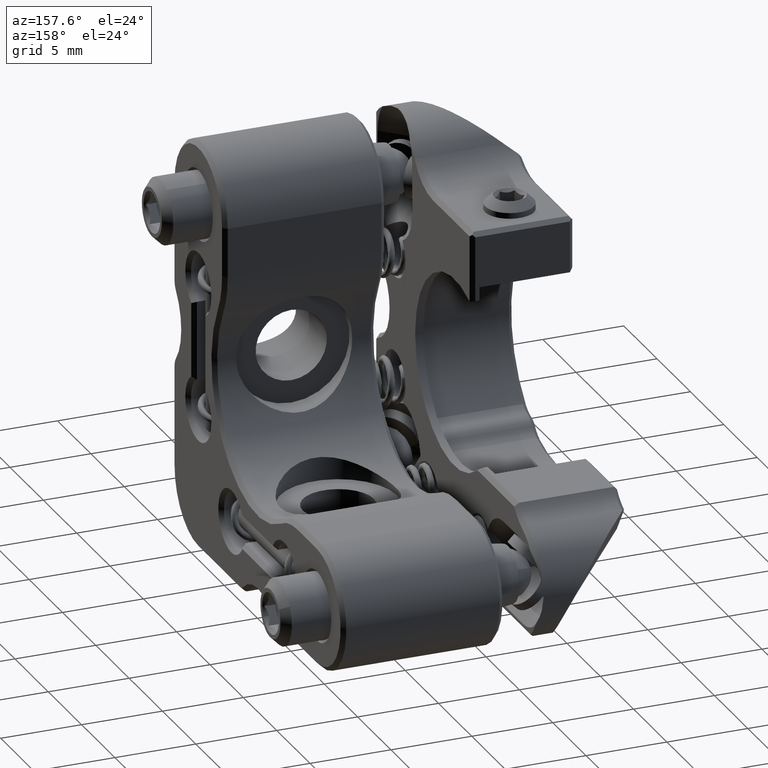
[diagram: clean part render]
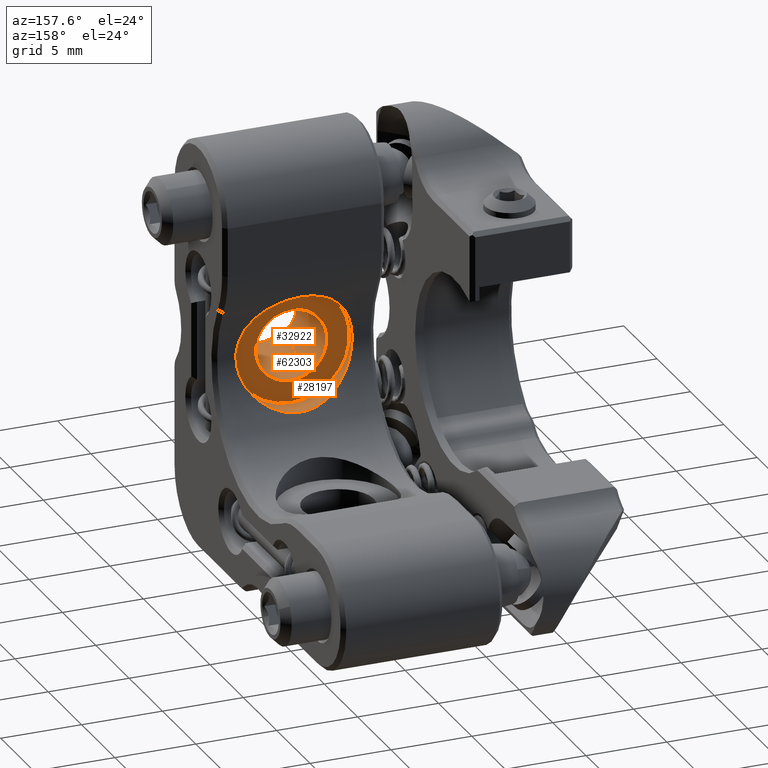
[diagram: same view with one multi-face feature highlighted, each face labeled with its STEP entity id]
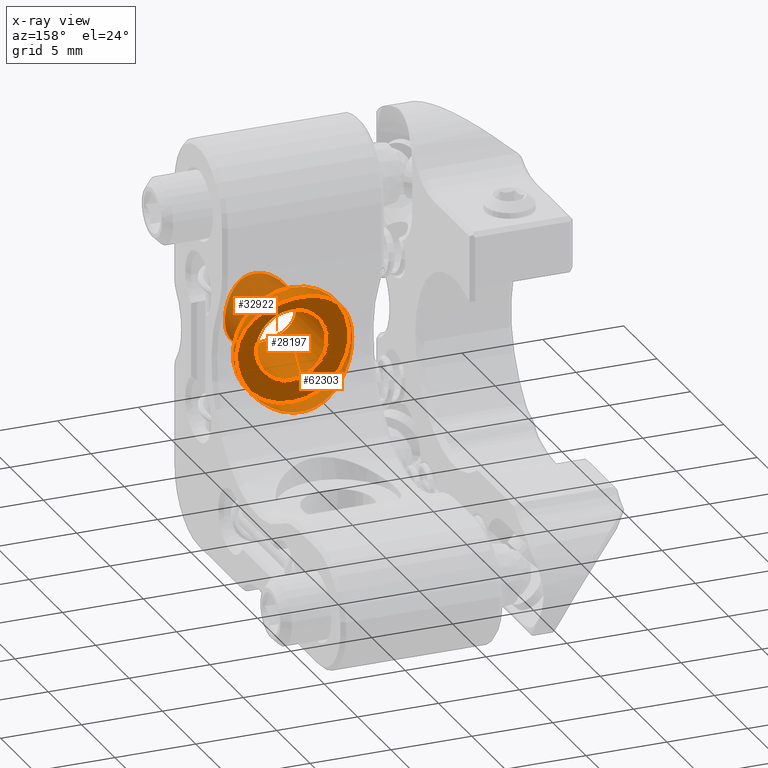
[diagram: x-ray of the same camera — body ghosted, the whole feature saturated]
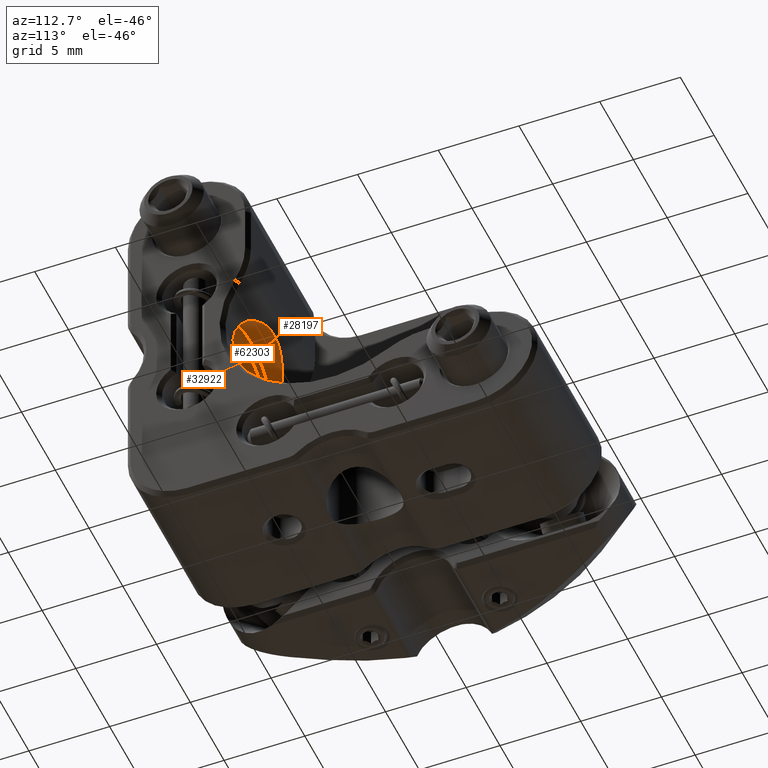
[diagram: same view with one multi-face feature highlighted, each face labeled with its STEP entity id]
A machine part, auxiliary view. The highlighted faces form ONE feature: a stepped (counterbored) hole: 2 coaxial cylindrical walls of radii 2.2 -> 3.6 mm joined by 1 annular planar shoulder face(s). The faces share edges in the B-rep.
The next image is the same camera in x-ray: the body ghosted and the whole hole feature saturated, so the bore chain is visible through the body.
A second angle (auxiliary view) of the same feature is appended — it is thin or edge-on in the first view.
Their STEP definitions:
[1] entity #28197 (Cylinder):
#289 = DIRECTION ( 'NONE',  ( 0.000000000000000000, -2.409338161078898194E-16, 1.000000000000000000 ) ) ;
#410 = CARTESIAN_POINT ( 'NONE',  ( 2.999227417622090996, -6.365207588899481017, -2.001839198852378487 ) ) ;
#735 = CARTESIAN_POINT ( 'NONE',  ( 1.990366503423735445, -5.954974567753317238, -3.006815794206267434 ) ) ;
#823 = B_SPLINE_CURVE_WITH_KNOTS ( 'NONE', 3,
 ( #45453, #30318, #30982, #25278, #10150, #46430, #46758, #51457, #51778, #36030, #29989, #30650, #56496, #5445, #25933, #410, #20898, #41402, #56827, #5769, #735, #60871, #35369, #45783, #40425, #62181, #50482, #16180, #50806, #55510, #66240, #5121, #55841, #35696, #24950, #19913, #9819, #56166, #42053, #57144, #47086, #63496, #27572, #31962, #21544, #2049, #57804, #22193, #11786, #11459, #62507, #48068, #42705, #63162, #37672, #17499, #32614, #11123 ),
 .UNSPECIFIED., .F., .F.,
 ( 4, 2, 2, 2, 2, 2, 2, 2, 2, 2, 2, 2, 2, 2, 2, 2, 2, 2, 2, 2, 2, 2, 2, 2, 2, 2, 2, 2, 4 ),
 ( -0.01017427484824065705, -0.008903594234275377661, -0.007632913620310098277, -0.006362233006344818025, -0.005726892699362178332, -0.005091552392379538640, -0.004456212085396898948, -0.003820871778414258388, -0.003185531471431618696, -0.002550191164448979003, -0.001914850857466340178, -0.001279510550483699619, -0.0006441702435010590588, -8.829936518420233860E-06, 0.0006265103704642185911, 0.001261850677446859151, 0.001897190984429499711, 0.002532531291412140270, 0.003167871598394779095, 0.003803211905377419655, 0.004438552212360060215, 0.005073892519342699040, 0.005709232826325334395, 0.006344573133307973220, 0.007615253747273250870, 0.008250594054255889695, 0.008885934361238525050, 0.009521274668221163875, 0.01015661497520379923 ),
 .UNSPECIFIED. ) ;
#1603 = CARTESIAN_POINT ( 'NONE',  ( 0.000000000000000000, -7.079999999999999183, -1.572075802869221480E-15 ) ) ;
#1690 = B_SPLINE_CURVE_WITH_KNOTS ( 'NONE', 3,
 ( #38898, #13340, #33849, #35841, #62323, #15995, #41541, #10617, #30459, #46899 ),
 .UNSPECIFIED., .F., .F.,
 ( 4, 2, 2, 2, 4 ),
 ( -0.001319188184262977707, -0.0006596196351350410922, -5.108600710447726290E-08, 0.0006595174631208319208, 0.001319086012248768319 ),
 .UNSPECIFIED. ) ;
#2049 = CARTESIAN_POINT ( 'NONE',  ( -3.602001608509256769, -6.671080285931093812, 0.1759047866018546291 ) ) ;
#5121 = CARTESIAN_POINT ( 'NONE',  ( -1.431482785438481953, -5.791468659309575884, -3.309794324164818669 ) ) ;
#5201 = EDGE_CURVE ( 'NONE', #20313, #20313, #6822, .T. ) ;
#5445 = CARTESIAN_POINT ( 'NONE',  ( 3.299641821881809545, -6.512496146404029851, -1.454685377719002304 ) ) ;
#5769 = CARTESIAN_POINT ( 'NONE',  ( 2.156933656981588676, -6.013356321162400597, -2.889478491870121957 ) ) ;
#6822 = CIRCLE ( 'NONE', #60435, 3.600000000000000533 ) ;
#9819 = CARTESIAN_POINT ( 'NONE',  ( -2.604509012406206470, -6.188542217661296085, -2.493699652372160180 ) ) ;
#10020 = DIRECTION ( 'NONE',  ( -0.000000000000000000, 1.000000000000000000, 2.220446049250313081E-16 ) ) ;
#10150 = CARTESIAN_POINT ( 'NONE',  ( 2.915657196636493254, -6.324324917119667155, 2.152422688581716148 ) ) ;
#10617 = CARTESIAN_POINT ( 'NONE',  ( -0.8726701642541234705, -5.683191274859164643, 3.499487090323886385 ) ) ;
#11123 = CARTESIAN_POINT ( 'NONE',  ( -1.289541171353878468, -5.761233933161954646, 3.361113441611761843 ) ) ;
#11459 = CARTESIAN_POINT ( 'NONE',  ( -3.026471455616823292, -6.378122954127268152, 1.960406414998290936 ) ) ;
#11786 = CARTESIAN_POINT ( 'NONE',  ( -3.333201607127716848, -6.527420986803713632, 1.421498568680486407 ) ) ;
#12350 = EDGE_LOOP ( 'NONE', ( #37577 ) ) ;
#13340 = CARTESIAN_POINT ( 'NONE',  ( 1.085704604197472056, -5.715609046440620844, 3.439318372847163463 ) ) ;
#15995 = CARTESIAN_POINT ( 'NONE',  ( -0.2229319806949627836, -5.630452435326498417, 3.600003208906441543 ) ) ;
#16180 = CARTESIAN_POINT ( 'NONE',  ( -0.2062466073216841222, -5.614723298138883933, -3.600525335491211010 ) ) ;
#17499 = CARTESIAN_POINT ( 'NONE',  ( -1.672337023569226755, -5.856389156944260321, 3.194672768705502097 ) ) ;
#19913 = CARTESIAN_POINT ( 'NONE',  ( -2.459647513272282815, -6.128431422745098445, -2.636633829097012161 ) ) ;
#20313 = VERTEX_POINT ( 'NONE', #21296 ) ;
#20898 = CARTESIAN_POINT ( 'NONE',  ( 2.880595148318685794, -6.309719007968070947, -2.168933854323909394 ) ) ;
#21296 = CARTESIAN_POINT ( 'NONE',  ( 0.000000000000000000, -7.080000000000000071, 3.599999999999998757 ) ) ;
#21544 = CARTESIAN_POINT ( 'NONE',  ( -3.597616904322380016, -6.668713817813848976, -0.2500213818587918579 ) ) ;
#22193 = CARTESIAN_POINT ( 'NONE',  ( -3.479029930978941643, -6.605224634968987374, 1.017519044529580974 ) ) ;
#24950 = CARTESIAN_POINT ( 'NONE',  ( -2.145694345154467886, -6.009310279605375449, -2.897878468027504262 ) ) ;
#25278 = CARTESIAN_POINT ( 'NONE',  ( 2.655979252209755614, -6.204833769869270377, 2.464799130474355060 ) ) ;
#25933 = CARTESIAN_POINT ( 'NONE',  ( 3.208640834045037860, -6.466519817418693528, -1.645402467111549694 ) ) ;
#27572 = CARTESIAN_POINT ( 'NONE',  ( -3.498431243463553386, -6.615649985903123920, -0.8749418580757117869 ) ) ;
#27774 = VERTEX_POINT ( 'NONE', #28537 ) ;
#28197 = ADVANCED_FACE ( 'NONE', ( #30193, #45004 ), #55715, .F. ) ;
#28537 = CARTESIAN_POINT ( 'NONE',  ( -1.289541171353878468, -5.761233933161954646, 3.361113441611761843 ) ) ;
#29989 = CARTESIAN_POINT ( 'NONE',  ( 3.579222377425992807, -6.658728961809710967, -0.4411076963971986564 ) ) ;
#30193 = FACE_OUTER_BOUND ( 'NONE', #42609, .T. ) ;
#30318 = CARTESIAN_POINT ( 'NONE',  ( 1.682098936019234880, -5.849100422449398096, 3.210502815560449807 ) ) ;
#30459 = CARTESIAN_POINT ( 'NONE',  ( -1.085719081882338344, -5.715612286991329505, 3.439312818267995286 ) ) ;
#30650 = CARTESIAN_POINT ( 'NONE',  ( 3.502190104692616490, -6.617641127258513833, -0.8602751289447720939 ) ) ;
#30982 = CARTESIAN_POINT ( 'NONE',  ( 2.031000025768237016, -5.964117489470841527, 3.000749812477749412 ) ) ;
#31962 = CARTESIAN_POINT ( 'NONE',  ( -3.576703117086199146, -6.657372511622901001, -0.4601513147659020420 ) ) ;
#32614 = CARTESIAN_POINT ( 'NONE',  ( -1.486061290132179469, -5.805221173934332235, 3.285715574635141856 ) ) ;
#33849 = CARTESIAN_POINT ( 'NONE',  ( 0.8760056062511946129, -5.683641334226639863, 3.498651844196974281 ) ) ;
#35369 = CARTESIAN_POINT ( 'NONE',  ( 1.444738325126532663, -5.794847398166485419, -3.303876223447648641 ) ) ;
#35696 = CARTESIAN_POINT ( 'NONE',  ( -1.975228474474693297, -5.949922109042764085, -3.016759175006994198 ) ) ;
#35841 = CARTESIAN_POINT ( 'NONE',  ( 0.4454932807419123009, -5.641029851618619695, 3.579034267215142506 ) ) ;
#35908 = CARTESIAN_POINT ( 'NONE',  ( 0.000000000000000000, -5.079999999999999183, -1.127986593019158864E-15 ) ) ;
#36030 = CARTESIAN_POINT ( 'NONE',  ( 3.598995075405910349, -6.669457615858813249, -0.2279368133229083548 ) ) ;
#37577 = ORIENTED_EDGE ( 'NONE', *, *, #5201, .F. ) ;
#37672 = CARTESIAN_POINT ( 'NONE',  ( -2.026678037794401366, -5.967244481840181081, 2.982485767045787384 ) ) ;
#37896 = DIRECTION ( 'NONE',  ( -0.000000000000000000, 1.000000000000000000, 2.220446049250313081E-16 ) ) ;
#38898 = CARTESIAN_POINT ( 'NONE',  ( 1.289541171353888016, -5.761233933161956422, 3.361113441611757846 ) ) ;
#40425 = CARTESIAN_POINT ( 'NONE',  ( 0.8557443330029467221, -5.676133957738346503, -3.503201273901051849 ) ) ;
#41402 = CARTESIAN_POINT ( 'NONE',  ( 2.615495237606380030, -6.193185035903422175, -2.482194016391116254 ) ) ;
#41541 = CARTESIAN_POINT ( 'NONE',  ( -0.4420243683481044350, -5.640808336284757196, 3.579466101070007511 ) ) ;
#42053 = CARTESIAN_POINT ( 'NONE',  ( -2.992070795409341954, -6.361835251912364875, -2.012426381124174490 ) ) ;
#42609 = EDGE_LOOP ( 'NONE', ( #61809, #62962 ) ) ;
#42705 = CARTESIAN_POINT ( 'NONE',  ( -2.503858752667845522, -6.146370323695264482, 2.594671444170378205 ) ) ;
#44117 = CARTESIAN_POINT ( 'NONE',  ( 1.289541171353888016, -5.761233933161956422, 3.361113441611757846 ) ) ;
#45004 = FACE_OUTER_BOUND ( 'NONE', #12350, .T. ) ;
#45453 = CARTESIAN_POINT ( 'NONE',  ( 1.289541171353888016, -5.761233933161956422, 3.361113441611757846 ) ) ;
#45783 = CARTESIAN_POINT ( 'NONE',  ( 1.056440102266443803, -5.710433716419814232, -3.447724066435042367 ) ) ;
#46430 = CARTESIAN_POINT ( 'NONE',  ( 3.330580660644239188, -6.526009217436021359, 1.428710181094160925 ) ) ;
#46758 = CARTESIAN_POINT ( 'NONE',  ( 3.473303782396710560, -6.602188776893842537, 1.038645597843692814 ) ) ;
#46899 = CARTESIAN_POINT ( 'NONE',  ( -1.289541171353878468, -5.761233933161954646, 3.361113441611761843 ) ) ;
#47086 = CARTESIAN_POINT ( 'NONE',  ( -3.291724588799680884, -6.508479535207149169, -1.472495319900344768 ) ) ;
#47866 = AXIS2_PLACEMENT_3D ( 'NONE', #35908, #10020, #289 ) ;
#47957 = DIRECTION ( 'NONE',  ( 0.000000000000000000, -2.409338161078898194E-16, 1.000000000000000000 ) ) ;
#48068 = CARTESIAN_POINT ( 'NONE',  ( -2.646504484872872709, -6.206377833080256146, 2.449147444856166089 ) ) ;
#49444 = VERTEX_POINT ( 'NONE', #44117 ) ;
#50482 = CARTESIAN_POINT ( 'NONE',  ( 0.2241953362221954515, -5.615411258351044488, -3.599452292469232706 ) ) ;
#50806 = CARTESIAN_POINT ( 'NONE',  ( -0.4176278272620545517, -5.626795184782809933, -3.581890472062645436 ) ) ;
#51457 = CARTESIAN_POINT ( 'NONE',  ( 3.583280490465420076, -6.660918738701370856, 0.4071325181470422105 ) ) ;
#51625 = EDGE_CURVE ( 'NONE', #49444, #27774, #823, .T. ) ;
#51778 = CARTESIAN_POINT ( 'NONE',  ( 3.600929608451413966, -6.670501733900022323, 0.1950043554430154202 ) ) ;
#55510 = CARTESIAN_POINT ( 'NONE',  ( -0.8324309800280904614, -5.672684759961716061, -3.508762035169420201 ) ) ;
#55715 = CYLINDRICAL_SURFACE ( 'NONE', #47866, 3.600000000000000533 ) ;
#55841 = CARTESIAN_POINT ( 'NONE',  ( -1.618525208180857433, -5.841204450010043736, -3.222225876137118750 ) ) ;
#56166 = CARTESIAN_POINT ( 'NONE',  ( -2.870700708856220196, -6.305197074152292025, -2.181990511463919091 ) ) ;
#56496 = CARTESIAN_POINT ( 'NONE',  ( 3.445902822936566690, -6.587808146063303560, -1.062779109570177516 ) ) ;
#56827 = CARTESIAN_POINT ( 'NONE',  ( 2.468954658850602168, -6.132196062757934385, -2.627872076060763451 ) ) ;
#57144 = CARTESIAN_POINT ( 'NONE',  ( -3.201902579080704303, -6.463175709638183442, -1.658362884974929452 ) ) ;
#57804 = CARTESIAN_POINT ( 'NONE',  ( -3.584863848849040746, -6.661776010886523380, 0.3917904438247437615 ) ) ;
#60435 = AXIS2_PLACEMENT_3D ( 'NONE', #1603, #37896, #47957 ) ;
#60871 = CARTESIAN_POINT ( 'NONE',  ( 1.634107770020023276, -5.845551427254523702, -3.214372696841434340 ) ) ;
#61680 = EDGE_CURVE ( 'NONE', #49444, #27774, #1690, .T. ) ;
#61809 = ORIENTED_EDGE ( 'NONE', *, *, #61680, .F. ) ;
#62181 = CARTESIAN_POINT ( 'NONE',  ( 0.4397160296263544765, -5.628458805875200532, -3.579297045820344803 ) ) ;
#62323 = CARTESIAN_POINT ( 'NONE',  ( 0.2230356062122501870, -5.630455725265417932, 3.599996790347845366 ) ) ;
#62507 = CARTESIAN_POINT ( 'NONE',  ( -2.908242696076480893, -6.322421640303654833, 2.131767720886942552 ) ) ;
#62962 = ORIENTED_EDGE ( 'NONE', *, *, #51625, .T. ) ;
#63162 = CARTESIAN_POINT ( 'NONE',  ( -2.194659612826309392, -6.027029974942995416, 2.860960981966312655 ) ) ;
#63496 = CARTESIAN_POINT ( 'NONE',  ( -3.440026232321127697, -6.584727448479497980, -1.081625053601917852 ) ) ;
#66240 = CARTESIAN_POINT ( 'NONE',  ( -1.037936955016821372, -5.706950095221433372, -3.453486399378282723 ) ) ;
[2] entity #32922 (Cylinder):
#55 = CARTESIAN_POINT ( 'NONE',  ( -0.9499999999999938494, -12.45000000000000284, -1.984313483298448810 ) ) ;
#263 = EDGE_CURVE ( 'NONE', #24030, #24030, #35719, .T. ) ;
#628 = CARTESIAN_POINT ( 'NONE',  ( -0.9499999999999615419, -12.45000000000001705, 1.984313483298458358 ) ) ;
#1037 = CARTESIAN_POINT ( 'NONE',  ( 0.9499999999999929612, -12.45000000000000284, -1.984313483298448810 ) ) ;
#2165 = CARTESIAN_POINT ( 'NONE',  ( 0.9499999999999929612, -12.45000000000000284, -1.984313483298448810 ) ) ;
#2456 = EDGE_CURVE ( 'NONE', #10290, #2844, #14840, .T. ) ;
#2844 = VERTEX_POINT ( 'NONE', #30618 ) ;
#3277 = CARTESIAN_POINT ( 'NONE',  ( 1.955381947391216624, -11.87568726863262292, 1.028558823693468849 ) ) ;
#3608 = CARTESIAN_POINT ( 'NONE',  ( 1.597289960886920213, -12.11223707409511796, -1.525773796661370474 ) ) ;
#3942 = CARTESIAN_POINT ( 'NONE',  ( 2.035085156724016464, -11.81892985985327549, -0.8421849593527289679 ) ) ;
#4279 = CARTESIAN_POINT ( 'NONE',  ( 1.301331790234540708, -12.28366410482716020, 1.784914775244936358 ) ) ;
#4287 = CARTESIAN_POINT ( 'NONE',  ( -1.730692940487388531, -12.02631871902779714, 1.373116659372084492 ) ) ;
#4653 = EDGE_CURVE ( 'NONE', #20939, #18799, #51701, .T. ) ;
#5004 = CARTESIAN_POINT ( 'NONE',  ( 0.6522676617099425478, -12.54385861745076269, 2.107505178132391688 ) ) ;
#5089 = CARTESIAN_POINT ( 'NONE',  ( -0.6522676617099335550, -12.54385861745076092, -2.107505178132399681 ) ) ;
#5747 = B_SPLINE_CURVE_WITH_KNOTS ( 'NONE', 3,
 ( #26210, #55325, #60028, #3608, #8637, #34842, #9300, #3942, #34182, #59358, #13678, #19058, #29798, #35171, #59695, #44602, #3277, #50295, #40231, #4279, #30130, #24429 ),
 .UNSPECIFIED., .F., .F.,
 ( 4, 2, 2, 2, 2, 2, 2, 2, 2, 2, 4 ),
 ( 5.421010862427522170E-19, 0.0006465942723281037623, 0.001293188544656207091, 0.001616485680820257780, 0.001939782816984308034, 0.002263079953148358289, 0.002586377089312408544, 0.003232971361640509488, 0.003879565633968610431, 0.004526159906296712242, 0.005172754178624812751 ),
 .UNSPECIFIED. ) ;
#8637 = CARTESIAN_POINT ( 'NONE',  ( 1.730692940487405407, -12.02631871902778471, -1.373116659372068726 ) ) ;
#8648 = CARTESIAN_POINT ( 'NONE',  ( -2.135315551229701736, -11.74718601742729440, 0.5400478699841610997 ) ) ;
#8839 = CARTESIAN_POINT ( 'NONE',  ( 0.000000000000000000, -7.079999999999999183, -1.572075802869221480E-15 ) ) ;
#8978 = CARTESIAN_POINT ( 'NONE',  ( -0.9499999999999938494, -12.45000000000000284, -1.984313483298448810 ) ) ;
#9300 = CARTESIAN_POINT ( 'NONE',  ( 1.946422897353371484, -11.88085905767941952, -1.030672113495304520 ) ) ;
#9705 = CARTESIAN_POINT ( 'NONE',  ( 0.3317733604245465262, -12.58648428033380462, 2.181045074197230260 ) ) ;
#10290 = VERTEX_POINT ( 'NONE', #2165 ) ;
#13074 = ORIENTED_EDGE ( 'NONE', *, *, #61270, .T. ) ;
#13678 = CARTESIAN_POINT ( 'NONE',  ( 2.159092907616761092, -11.72988896710841722, -0.4359468679929413004 ) ) ;
#13691 = CARTESIAN_POINT ( 'NONE',  ( -1.134370861482748349, -12.37215452515173197, 1.896045011666904534 ) ) ;
#14840 = B_SPLINE_CURVE_WITH_KNOTS ( 'NONE', 3,
 ( #1037, #25577, #20868, #36990, #45751, #40720, #51101, #5089, #57116, #55 ),
 .UNSPECIFIED., .F., .F.,
 ( 4, 2, 2, 2, 4 ),
 ( -0.0009901643228650250546, -0.0004948839116037908248, 3.964996574434050819E-07, 0.0004956769109186777433, 0.0009909573221799118647 ),
 .UNSPECIFIED. ) ;
#16797 = AXIS2_PLACEMENT_3D ( 'NONE', #23638, #33720, #53187 ) ;
#18270 = FACE_OUTER_BOUND ( 'NONE', #28539, .T. ) ;
#18405 = CARTESIAN_POINT ( 'NONE',  ( -1.134476783253942855, -12.37210980262611493, -1.895994301089430012 ) ) ;
#18740 = CARTESIAN_POINT ( 'NONE',  ( -1.733415266504064522, -12.02456502031357033, -1.369935519589084993 ) ) ;
#18799 = VERTEX_POINT ( 'NONE', #62581 ) ;
#19058 = CARTESIAN_POINT ( 'NONE',  ( 2.191473783997461844, -11.70626742845466062, -0.2217532626269522467 ) ) ;
#19401 = CARTESIAN_POINT ( 'NONE',  ( -2.167905679897569993, -11.72375924154688853, -0.4303491473036252235 ) ) ;
#20201 = EDGE_LOOP ( 'NONE', ( #22009, #13074, #30621, #46964 ) ) ;
#20868 = CARTESIAN_POINT ( 'NONE',  ( 0.6555990382419447648, -12.54330528396462618, -2.106593013118112534 ) ) ;
#20939 = VERTEX_POINT ( 'NONE', #62174 ) ;
#21115 = CARTESIAN_POINT ( 'NONE',  ( -0.3321417607612778267, -12.58654429107476247, 2.181106616518362795 ) ) ;
#21444 = CARTESIAN_POINT ( 'NONE',  ( 0.8084856936891507972, -12.50975048488681018, 2.052064164895298415 ) ) ;
#22009 = ORIENTED_EDGE ( 'NONE', *, *, #2456, .F. ) ;
#23438 = CARTESIAN_POINT ( 'NONE',  ( -1.301331790234541153, -12.28366410482715843, -1.784914775244940577 ) ) ;
#23638 = CARTESIAN_POINT ( 'NONE',  ( 0.000000000000000000, -5.079999999999999183, -1.127986593019158864E-15 ) ) ;
#24030 = VERTEX_POINT ( 'NONE', #50551 ) ;
#24303 = DIRECTION ( 'NONE',  ( 0.000000000000000000, -1.000000000000000000, -2.220446049250313081E-16 ) ) ;
#24429 = CARTESIAN_POINT ( 'NONE',  ( 0.9499999999999966249, -12.45000000000000284, 1.984313483298440817 ) ) ;
#24441 = CARTESIAN_POINT ( 'NONE',  ( -1.946422897353359938, -11.88085905767942663, 1.030672113495320952 ) ) ;
#25163 = CARTESIAN_POINT ( 'NONE',  ( 0.9499999999999966249, -12.45000000000000284, 1.984313483298440817 ) ) ;
#25577 = CARTESIAN_POINT ( 'NONE',  ( 0.8083857351460363994, -12.50979268960500868, -2.052112020547527393 ) ) ;
#25615 = B_SPLINE_CURVE_WITH_KNOTS ( 'NONE', 3,
 ( #54675, #13691, #59370, #65724, #4287, #50623, #24441, #54999, #60038, #8648, #30137, #34521, #29145, #55659, #19401, #43945, #45273, #18740, #64402, #23438, #18405, #8978 ),
 .UNSPECIFIED., .F., .F.,
 ( 4, 2, 2, 2, 2, 2, 2, 2, 2, 2, 4 ),
 ( 2.168404344971008868E-19, 0.0006465942723281073402, 0.001293188544656214464, 0.001616485680820267754, 0.001939782816984320828, 0.002263079953148373902, 0.002586377089312426325, 0.003232971361640532906, 0.003879565633968639488, 0.004526159906296746069, 0.005172754178624852650 ),
 .UNSPECIFIED. ) ;
#26155 = CARTESIAN_POINT ( 'NONE',  ( -0.1670360228932891711, -12.59517206250305321, 2.200030569250795320 ) ) ;
#26210 = CARTESIAN_POINT ( 'NONE',  ( 0.9499999999999929612, -12.45000000000000284, -1.984313483298448810 ) ) ;
#28539 = EDGE_LOOP ( 'NONE', ( #54894 ) ) ;
#29145 = CARTESIAN_POINT ( 'NONE',  ( -2.199790174550405375, -11.70015387186854561, 0.1122420558856884465 ) ) ;
#29798 = CARTESIAN_POINT ( 'NONE',  ( 2.199790174550406263, -11.70015387186854561, -0.1122420558856758177 ) ) ;
#30130 = CARTESIAN_POINT ( 'NONE',  ( 1.134476783253943744, -12.37210980262611137, 1.895994301089421796 ) ) ;
#30137 = CARTESIAN_POINT ( 'NONE',  ( -2.159092907616757540, -11.72988896710841722, 0.4359468679929560109 ) ) ;
#30618 = CARTESIAN_POINT ( 'NONE',  ( -0.9499999999999938494, -12.45000000000000284, -1.984313483298448810 ) ) ;
#30621 = ORIENTED_EDGE ( 'NONE', *, *, #4653, .F. ) ;
#32922 = ADVANCED_FACE ( 'NONE', ( #18270, #38774 ), #59231, .F. ) ;
#33720 = DIRECTION ( 'NONE',  ( -0.000000000000000000, 1.000000000000000000, 2.220446049250313081E-16 ) ) ;
#34182 = CARTESIAN_POINT ( 'NONE',  ( 2.073541344047009627, -11.79154480560113250, -0.7427317818200340760 ) ) ;
#34521 = CARTESIAN_POINT ( 'NONE',  ( -2.191473783997460512, -11.70626742845466595, 0.2217532626269655138 ) ) ;
#34842 = CARTESIAN_POINT ( 'NONE',  ( 1.896426324415207532, -11.91526461069870635, -1.119711592192179195 ) ) ;
#35171 = CARTESIAN_POINT ( 'NONE',  ( 2.200407675584816758, -11.69970103815643014, 0.2119113632140166015 ) ) ;
#35719 = CIRCLE ( 'NONE', #48559, 2.199999999999999734 ) ;
#36990 = CARTESIAN_POINT ( 'NONE',  ( 0.3321417607613041389, -12.58654429107475181, -2.181106616518365016 ) ) ;
#38774 = FACE_OUTER_BOUND ( 'NONE', #20201, .T. ) ;
#40231 = CARTESIAN_POINT ( 'NONE',  ( 1.599750641814716490, -12.11071113121531440, 1.523214714732010089 ) ) ;
#40720 = CARTESIAN_POINT ( 'NONE',  ( -0.1678402984271237519, -12.59514158143589491, -2.199969357242484769 ) ) ;
#41619 = CARTESIAN_POINT ( 'NONE',  ( 0.1678402984271405163, -12.59514158143588602, 2.199969357242475887 ) ) ;
#43945 = CARTESIAN_POINT ( 'NONE',  ( -2.045710174332800335, -11.81155333566393395, -0.8367110063506784101 ) ) ;
#44602 = CARTESIAN_POINT ( 'NONE',  ( 2.045710174332797671, -11.81155333566393928, 0.8367110063506824069 ) ) ;
#44803 = DIRECTION ( 'NONE',  ( 0.000000000000000000, -3.942553354492744024E-16, 1.000000000000000000 ) ) ;
#45273 = CARTESIAN_POINT ( 'NONE',  ( -1.955381947391221065, -11.87568726863261936, -1.028558823693466184 ) ) ;
#45751 = CARTESIAN_POINT ( 'NONE',  ( 0.1670360228933097102, -12.59517206250305321, -2.200030569250801094 ) ) ;
#46964 = ORIENTED_EDGE ( 'NONE', *, *, #48545, .T. ) ;
#48545 = EDGE_CURVE ( 'NONE', #20939, #2844, #25615, .T. ) ;
#48559 = AXIS2_PLACEMENT_3D ( 'NONE', #8839, #24303, #44803 ) ;
#50295 = CARTESIAN_POINT ( 'NONE',  ( 1.733415266504061192, -12.02456502031357388, 1.369935519589084327 ) ) ;
#50551 = CARTESIAN_POINT ( 'NONE',  ( 0.000000000000000000, -7.080000000000000071, 2.199999999999997957 ) ) ;
#50623 = CARTESIAN_POINT ( 'NONE',  ( -1.896426324415193987, -11.91526461069871168, 1.119711592192195404 ) ) ;
#51018 = CARTESIAN_POINT ( 'NONE',  ( -0.6555990382419140117, -12.54330528396463329, 2.106593013118115643 ) ) ;
#51101 = CARTESIAN_POINT ( 'NONE',  ( -0.3317733604245323153, -12.58648428033380817, -2.181045074197238698 ) ) ;
#51701 = B_SPLINE_CURVE_WITH_KNOTS ( 'NONE', 3,
 ( #628, #56051, #51018, #21115, #26155, #41619, #9705, #5004, #21444, #25163 ),
 .UNSPECIFIED., .F., .F.,
 ( 4, 2, 2, 2, 4 ),
 ( 1.084202172485504434E-19, 0.0004967002808639017818, 0.0009934005617278033468, 0.001490100842591704586, 0.001986801123455606260 ),
 .UNSPECIFIED. ) ;
#53187 = DIRECTION ( 'NONE',  ( 0.000000000000000000, -3.942553354492744024E-16, 1.000000000000000000 ) ) ;
#54675 = CARTESIAN_POINT ( 'NONE',  ( -0.9499999999999615419, -12.45000000000001705, 1.984313483298458358 ) ) ;
#54894 = ORIENTED_EDGE ( 'NONE', *, *, #263, .F. ) ;
#54999 = CARTESIAN_POINT ( 'NONE',  ( -2.035085156724008026, -11.81892985985327904, 0.8421849593527450661 ) ) ;
#55325 = CARTESIAN_POINT ( 'NONE',  ( 1.134370861482776327, -12.37215452515171776, -1.896045011666892988 ) ) ;
#55659 = CARTESIAN_POINT ( 'NONE',  ( -2.200407675584817202, -11.69970103815642481, -0.2119113632140064984 ) ) ;
#56051 = CARTESIAN_POINT ( 'NONE',  ( -0.8083857351460050911, -12.50979268960502111, 2.052112020547533167 ) ) ;
#57116 = CARTESIAN_POINT ( 'NONE',  ( -0.8084856936891455792, -12.50975048488681196, -2.052064164895306853 ) ) ;
#59231 = CYLINDRICAL_SURFACE ( 'NONE', #16797, 2.199999999999999734 ) ;
#59358 = CARTESIAN_POINT ( 'NONE',  ( 2.135315551229706621, -11.74718601742729085, -0.5400478699841461117 ) ) ;
#59370 = CARTESIAN_POINT ( 'NONE',  ( -1.298713948036535948, -12.28507978178112481, 1.786802445404620077 ) ) ;
#59695 = CARTESIAN_POINT ( 'NONE',  ( 2.167905679897567328, -11.72375924154689386, 0.4303491473036335502 ) ) ;
#60028 = CARTESIAN_POINT ( 'NONE',  ( 1.298713948036560373, -12.28507978178110882, -1.786802445404606532 ) ) ;
#60038 = CARTESIAN_POINT ( 'NONE',  ( -2.073541344047000745, -11.79154480560113605, 0.7427317818200498412 ) ) ;
#61270 = EDGE_CURVE ( 'NONE', #10290, #18799, #5747, .T. ) ;
#62174 = CARTESIAN_POINT ( 'NONE',  ( -0.9499999999999615419, -12.45000000000001705, 1.984313483298458358 ) ) ;
#62581 = CARTESIAN_POINT ( 'NONE',  ( 0.9499999999999966249, -12.45000000000000284, 1.984313483298440817 ) ) ;
#64402 = CARTESIAN_POINT ( 'NONE',  ( -1.599750641814718266, -12.11071113121531084, -1.523214714732013197 ) ) ;
#65724 = CARTESIAN_POINT ( 'NONE',  ( -1.597289960886900451, -12.11223707409513217, 1.525773796661385795 ) ) ;
[3] entity #62303 (Plane):
#263 = EDGE_CURVE ( 'NONE', #24030, #24030, #35719, .T. ) ;
#1603 = CARTESIAN_POINT ( 'NONE',  ( 0.000000000000000000, -7.079999999999999183, -1.572075802869221480E-15 ) ) ;
#5201 = EDGE_CURVE ( 'NONE', #20313, #20313, #6822, .T. ) ;
#6333 = EDGE_LOOP ( 'NONE', ( #38969 ) ) ;
#6563 = DIRECTION ( 'NONE',  ( 0.000000000000000000, -1.000000000000000000, -2.220446049250313081E-16 ) ) ;
#6822 = CIRCLE ( 'NONE', #60435, 3.600000000000000533 ) ;
#8839 = CARTESIAN_POINT ( 'NONE',  ( 0.000000000000000000, -7.079999999999999183, -1.572075802869221480E-15 ) ) ;
#11709 = AXIS2_PLACEMENT_3D ( 'NONE', #33105, #6563, #37813 ) ;
#16320 = ORIENTED_EDGE ( 'NONE', *, *, #263, .T. ) ;
#20313 = VERTEX_POINT ( 'NONE', #21296 ) ;
#21296 = CARTESIAN_POINT ( 'NONE',  ( 0.000000000000000000, -7.080000000000000071, 3.599999999999998757 ) ) ;
#24030 = VERTEX_POINT ( 'NONE', #50551 ) ;
#24303 = DIRECTION ( 'NONE',  ( 0.000000000000000000, -1.000000000000000000, -2.220446049250313081E-16 ) ) ;
#32104 = FACE_OUTER_BOUND ( 'NONE', #6333, .T. ) ;
#33105 = CARTESIAN_POINT ( 'NONE',  ( 2.200000000000001066, -7.079999999999999183, -1.572075802869221480E-15 ) ) ;
#35719 = CIRCLE ( 'NONE', #48559, 2.199999999999999734 ) ;
#37813 = DIRECTION ( 'NONE',  ( 0.000000000000000000, 2.220446049250313081E-16, -1.000000000000000000 ) ) ;
#37896 = DIRECTION ( 'NONE',  ( -0.000000000000000000, 1.000000000000000000, 2.220446049250313081E-16 ) ) ;
#38969 = ORIENTED_EDGE ( 'NONE', *, *, #5201, .T. ) ;
#42520 = FACE_BOUND ( 'NONE', #48703, .T. ) ;
#44803 = DIRECTION ( 'NONE',  ( 0.000000000000000000, -3.942553354492744024E-16, 1.000000000000000000 ) ) ;
#47957 = DIRECTION ( 'NONE',  ( 0.000000000000000000, -2.409338161078898194E-16, 1.000000000000000000 ) ) ;
#48559 = AXIS2_PLACEMENT_3D ( 'NONE', #8839, #24303, #44803 ) ;
#48703 = EDGE_LOOP ( 'NONE', ( #16320 ) ) ;
#50551 = CARTESIAN_POINT ( 'NONE',  ( 0.000000000000000000, -7.080000000000000071, 2.199999999999997957 ) ) ;
#53238 = PLANE ( 'NONE',  #11709 ) ;
#60435 = AXIS2_PLACEMENT_3D ( 'NONE', #1603, #37896, #47957 ) ;
#62303 = ADVANCED_FACE ( 'NONE', ( #32104, #42520 ), #53238, .F. ) ;